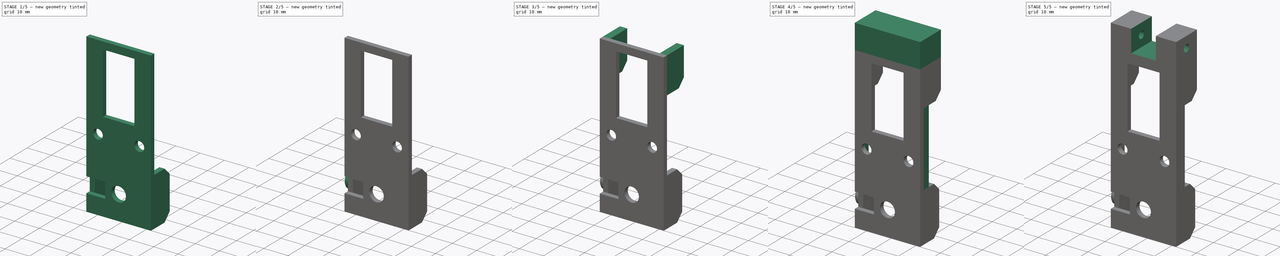
[diagram: build sequence overview — one tinted view per stage of 5, left to right]
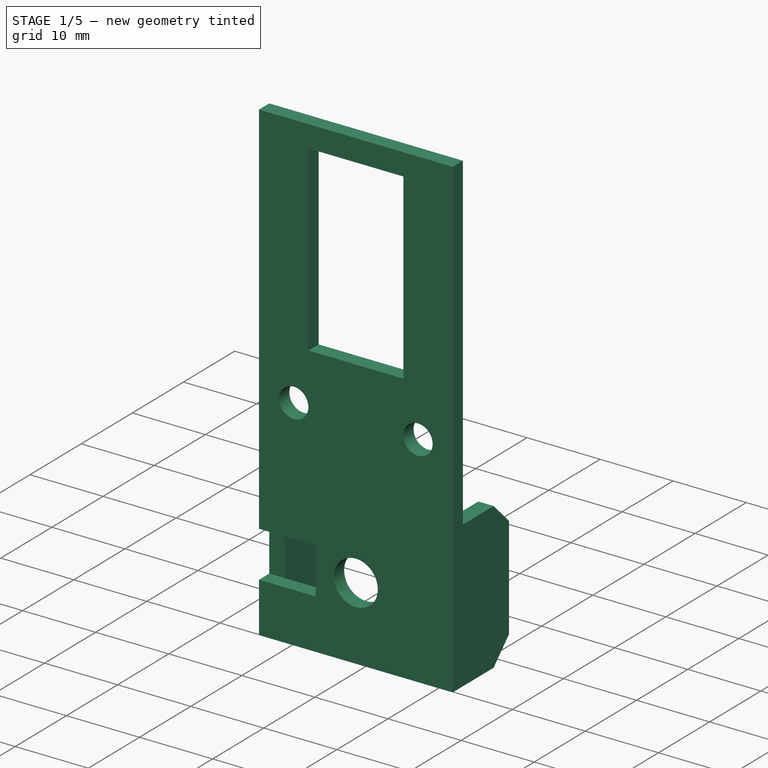
[diagram: stage 1 of 5 — iso view after this stage's code; geometry added in this stage tinted green]
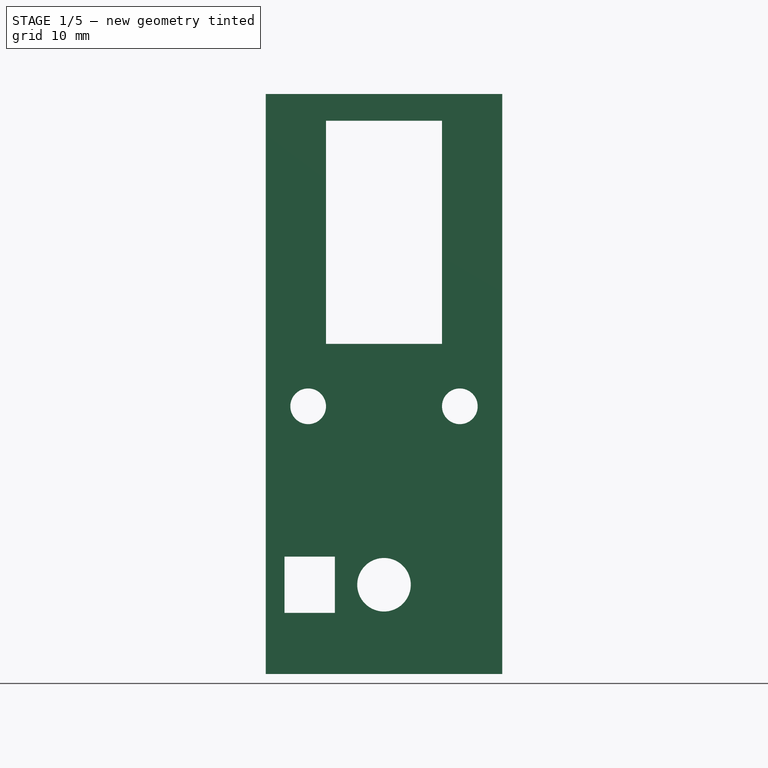
[diagram: stage 1 of 5 — front view after this stage's code; geometry added in this stage tinted green]
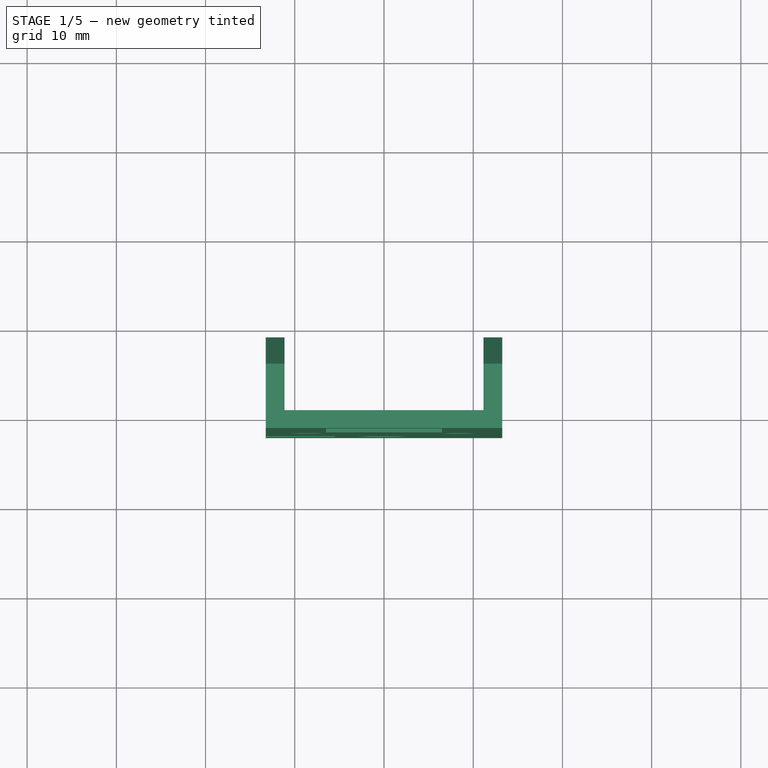
[diagram: stage 1 of 5 — top view after this stage's code; geometry added in this stage tinted green]
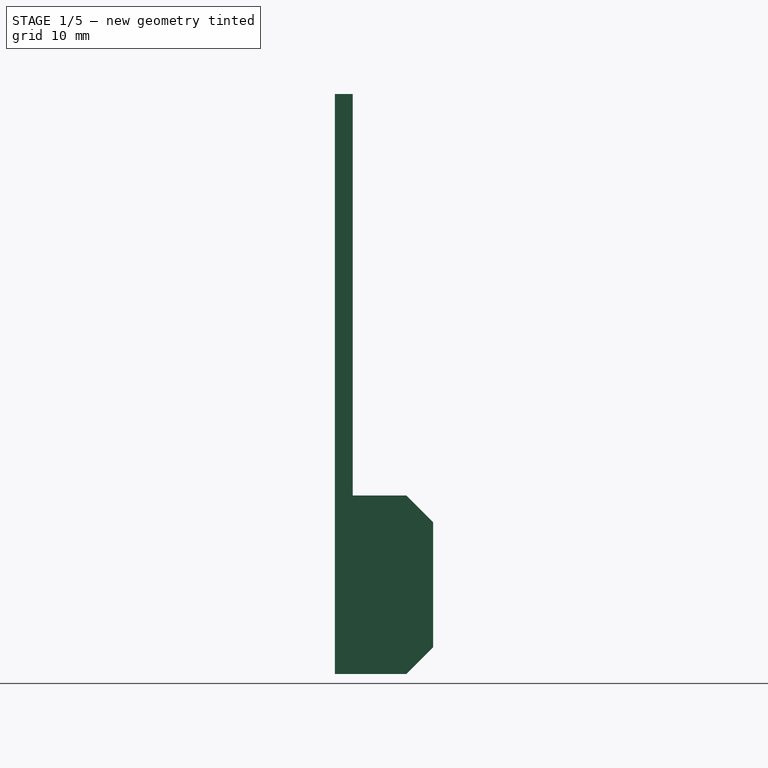
[diagram: stage 1 of 5 — right view after this stage's code; geometry added in this stage tinted green]
FCSTD DOCUMENT  (FreeCAD 0.18R16093 +53 (Git))
Label: motor_klem
License: All rights reserved
LicenseURL: http://en.wikipedia.org/wiki/All_rights_reserved
objects: Sketcher::SketchObject×11, PartDesign::Chamfer×8, PartDesign::Pad×6, PartDesign::Pocket×5, PartDesign::Body×1
note: 42 computed .brp shape members not serialized (recipe doc carries the construction recipe); baked Part::Feature solids carry a one-line shape summary decoded from their .brp

FEATURE [Sketcher::SketchObject] Sketch
  MapMode = 5
  Placement = pos=(0,0,0) rot=(1,0,0;1.5708rad)
  Support = -> [XZ_Plane]
  sketch-geometry (14):
    g0: LineSegment StartX=-13.25 StartY=55 StartZ=0 EndX=13.25 EndY=55 EndZ=0
    g1: LineSegment StartX=13.25 StartY=55 StartZ=0 EndX=13.25 EndY=-10 EndZ=0
    g2: LineSegment StartX=13.25 StartY=-10 StartZ=0 EndX=-13.25 EndY=-10 EndZ=0
    g3: LineSegment StartX=-13.25 StartY=55 StartZ=0 EndX=-13.25 EndY=3.15 EndZ=0
    g4: LineSegment StartX=-13.25 StartY=3.15 StartZ=0 EndX=-5.5 EndY=3.15 EndZ=0
    g5: LineSegment StartX=-5.5 StartY=-3.15 StartZ=0 EndX=-13.25 EndY=-3.15 EndZ=0
    g6: LineSegment StartX=-13.25 StartY=-3.15 StartZ=0 EndX=-13.25 EndY=-10 EndZ=0
    g7: LineSegment StartX=-5.5 StartY=-3.15 StartZ=0 EndX=-5.5 EndY=0 EndZ=0
    g8: LineSegment StartX=-5.5 StartY=0 StartZ=0 EndX=-5.5 EndY=3.15 EndZ=0
    g9: LineSegment [constr] StartX=-8.5 StartY=20 StartZ=0 EndX=8.5 EndY=20 EndZ=0
    g10: LineSegment [constr] StartX=0 StartY=0 StartZ=0 EndX=0 EndY=20 EndZ=0
    g11: Circle CenterX=-8.5 CenterY=20 CenterZ=0 NormalX=0 NormalY=0 NormalZ=1 AngleXU=0 Radius=2
    g12: Circle CenterX=8.5 CenterY=20 CenterZ=0 NormalX=0 NormalY=0 NormalZ=1 AngleXU=0 Radius=2
    g13: Circle CenterX=0 CenterY=0 CenterZ=0 NormalX=0 NormalY=0 NormalZ=1 AngleXU=0 Radius=3
  constraints (38):
    c: Coincident(g0,g1)
    c: Coincident(g1,g2)
    c: Horizontal(g0)
    c: Vertical(g1)
    c: Coincident(g3,g4)
    c: Coincident(g5,g6)
    c: Coincident(g2,g6)
    c: Vertical(g6)
    c: Horizontal(g5)
    c: Vertical(g3)
    c: Horizontal(g4)
    c: Symmetric(g2,g1,g-2)
    c: Vertical(g3,g5)
    c: Coincident(g0,g3)
    c: Distance(g2) = 26.5
    c: Distance(g1) = 65
    c: Coincident(g7,g8)
    c: Equal(g8,g7)
    c: Coincident(g7,g5)
    c: Vertical(g7)
    c: PointOnObject(g7,g-1)
    c: Coincident(g4,g8)
    c: Vertical(g8)
    c: Distance(g5,g3) = 6.3
    c: Distance(g-1,g7) = 5.5
    c: Symmetric(g9,g9,g-2)
    c: PointOnObject(g10,g9)
    c: Coincident(g10,g-1)
    c: Vertical(g10)
    c: Distance(g9) = 17
    c: Distance(g10) = 20
    c: Radius(g12) = 2
    c: Radius(g11) = 2
    c: Coincident(g11,g9)
    c: Coincident(g12,g9)
    c: DistanceY(g1,g-1) = 10
    c: Radius(g13) = 3
    c: Coincident(g13,g-1)
FEATURE [PartDesign::Pad] Pad
  Length = 2
  Length2 = 100
  Placement = pos=(0,0,0) rot=(1,0,0;1.5708rad)
  Profile = -> Sketch
  Type = 0
FEATURE [Sketcher::SketchObject] Sketch001
  ExternalGeometry = -> [Pad]
  MapMode = 5
  Placement = pos=(0,0,0) rot=(-1,0,0;1.5708rad)
  Support = -> [Pad]
  sketch-geometry (8):
    g0: LineSegment StartX=-13.25 StartY=10 StartZ=0 EndX=-11.15 EndY=10 EndZ=0
    g1: LineSegment StartX=-11.15 StartY=10 StartZ=0 EndX=-11.15 EndY=-10 EndZ=0
    g2: LineSegment StartX=-11.15 StartY=-10 StartZ=0 EndX=-13.25 EndY=-10 EndZ=0
    g3: LineSegment StartX=-13.25 StartY=-10 StartZ=0 EndX=-13.25 EndY=10 EndZ=0
    g4: LineSegment StartX=13.25 StartY=10 StartZ=0 EndX=11.15 EndY=10 EndZ=0
    g5: LineSegment StartX=11.15 StartY=10 StartZ=0 EndX=11.15 EndY=-10 EndZ=0
    g6: LineSegment StartX=11.15 StartY=-10 StartZ=0 EndX=13.25 EndY=-10 EndZ=0
    g7: LineSegment StartX=13.25 StartY=-10 StartZ=0 EndX=13.25 EndY=10 EndZ=0
  constraints (22):
    c: Coincident(g0,g1)
    c: Coincident(g1,g2)
    c: Coincident(g2,g3)
    c: Coincident(g3,g0)
    c: Horizontal(g0)
    c: Horizontal(g2)
    c: Vertical(g1)
    c: Coincident(g0,g-4)
    c: PointOnObject(g2,g-5)
    c: Distance(g3) = 20
    c: Coincident(g4,g5)
    c: Coincident(g5,g6)
    c: Coincident(g6,g7)
    c: Coincident(g7,g4)
    c: Horizontal(g4)
    c: Horizontal(g6)
    c: Vertical(g5)
    c: Vertical(g7)
    c: Coincident(g4,g-3)
    c: Equal(g7,g3)
    c: Distance(g4,g0) = 22.3
    c: Equal(g4,g0)
FEATURE [PartDesign::Pad] Pad001
  BaseFeature = -> Pad
  Length = 9
  Length2 = 100
  Placement = pos=(0,0,0) rot=(1,0,0;1.5708rad)
  Profile = -> Sketch001
  Type = 0
FEATURE [PartDesign::Chamfer] Chamfer
  Base = -> Pad001 [Edge62,Edge64,Edge50,Edge56]
  BaseFeature = -> Pad001
  Placement = pos=(0,0,0) rot=(1,0,0;1.5708rad)
  Size = 3
FEATURE [Sketcher::SketchObject] Sketch002
  MapMode = 5
  Placement = pos=(0,0,0) rot=(-1,0,0;1.5708rad)
  Support = -> [Chamfer]
  sketch-geometry (5):
    g0: LineSegment [constr] StartX=0 StartY=0 StartZ=0 EndX=0 EndY=-27 EndZ=0
    g1: LineSegment StartX=6.5 StartY=-52 StartZ=0 EndX=-6.5 EndY=-52 EndZ=0
    g2: LineSegment StartX=-6.5 StartY=-52 StartZ=0 EndX=-6.5 EndY=-27 EndZ=0
    g3: LineSegment StartX=-6.5 StartY=-27 StartZ=0 EndX=6.5 EndY=-27 EndZ=0
    g4: LineSegment StartX=6.5 StartY=-27 StartZ=0 EndX=6.5 EndY=-52 EndZ=0
  constraints (14):
    c: Coincident(g0,g-1)
    c: PointOnObject(g0,g-2)
    c: Distance(g0) = 27
    c: Coincident(g1,g2)
    c: Coincident(g2,g3)
    c: Coincident(g3,g4)
    c: Coincident(g4,g1)
    c: Horizontal(g1)
    c: Vertical(g2)
    c: Vertical(g4)
    c: PointOnObject(g0,g3)
    c: Symmetric(g2,g3,g-2)
    c: Distance(g3) = 13
    c: DistanceY(g1,g-1) = 52
FEATURE [PartDesign::Pocket] Pocket
  BaseFeature = -> Chamfer
  Length = 2.5
  Length2 = 100
  Placement = pos=(0,0,0) rot=(1,0,0;1.5708rad)
  Profile = -> Sketch002
  Type = 0
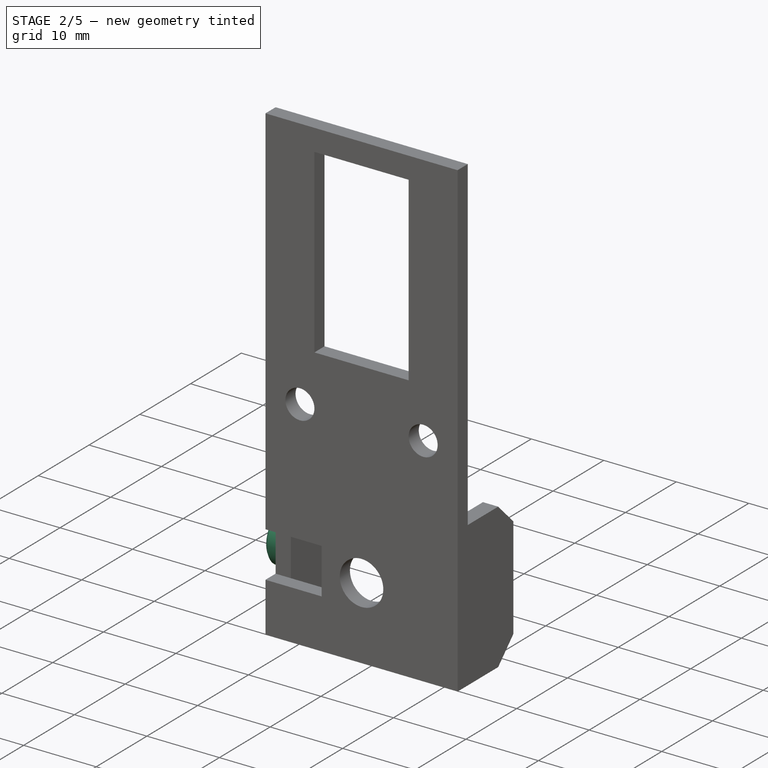
[diagram: stage 2 of 5 — iso view after this stage's code; geometry added in this stage tinted green]
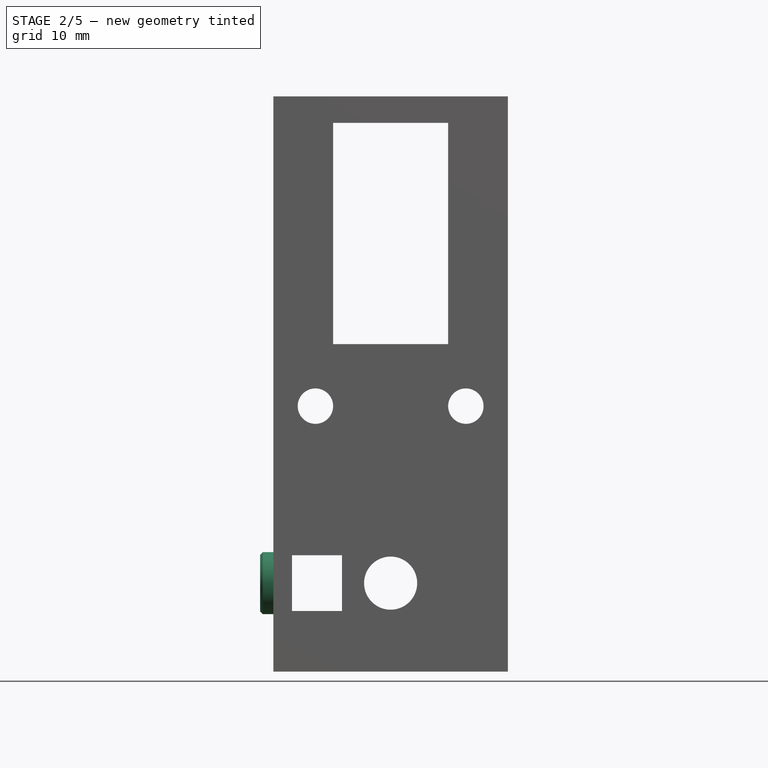
[diagram: stage 2 of 5 — front view after this stage's code; geometry added in this stage tinted green]
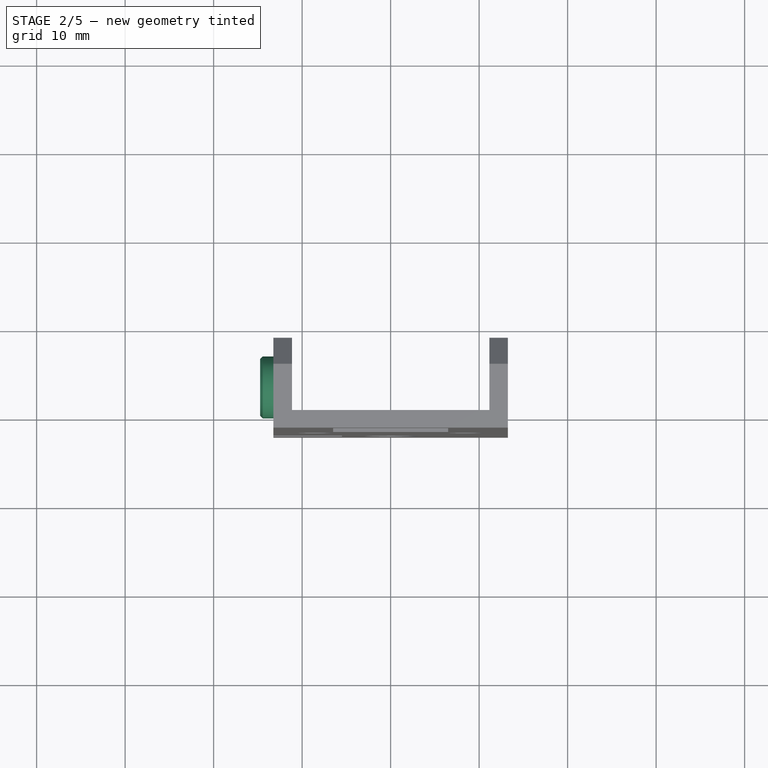
[diagram: stage 2 of 5 — top view after this stage's code; geometry added in this stage tinted green]
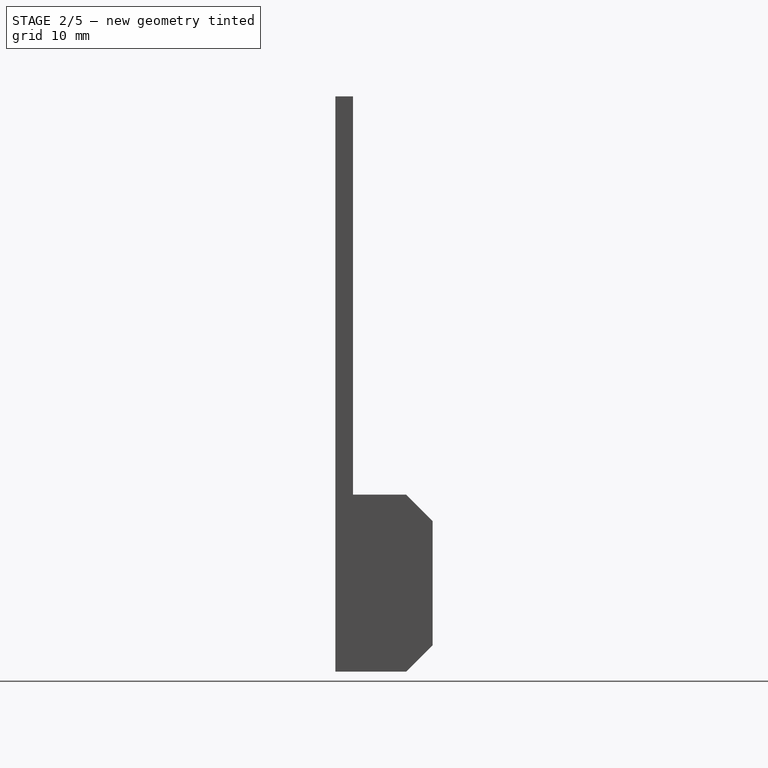
[diagram: stage 2 of 5 — right view after this stage's code; geometry added in this stage tinted green]
FEATURE [Sketcher::SketchObject] Sketch003
  MapMode = 5
  Placement = pos=(-13.25,0,1.2e-15) rot=(-0.707107,0,0.707107;3.14159rad)
  Support = -> [Pocket]
  sketch-geometry (1):
    g0: Circle CenterX=0 CenterY=-3.5 CenterZ=0 NormalX=0 NormalY=0 NormalZ=1 AngleXU=0 Radius=3.5
  constraints (3):
    c: PointOnObject(g-1,g0)
    c: Radius(g0) = 3.5
    c: PointOnObject(g0,g-2)
FEATURE [PartDesign::Pad] Pad002
  BaseFeature = -> Pocket
  Length = 1.5
  Length2 = 100
  Placement = pos=(0,0,0) rot=(1,0,0;1.5708rad)
  Profile = -> Sketch003
  Type = 0
FEATURE [Sketcher::SketchObject] Sketch004
  ExternalGeometry = -> [Pad002]
  MapMode = 5
  Placement = pos=(-14.75,0,0) rot=(0.707107,0,-0.707107;3.14159rad)
  Support = -> [Pad002]
  sketch-geometry (1):
    g0: Circle CenterX=-1.5e-15 CenterY=-3.5 CenterZ=0 NormalX=0 NormalY=0 NormalZ=1 AngleXU=0 Radius=1.7
  constraints (2):
    c: Radius(g0) = 1.7
    c: Coincident(g0,g-3)
FEATURE [PartDesign::Pocket] Pocket001
  BaseFeature = -> Pad002
  Length = 3
  Length2 = 100
  Placement = pos=(0,0,0) rot=(1,0,0;1.5708rad)
  Profile = -> Sketch004
  Type = 0
FEATURE [PartDesign::Chamfer] Chamfer001
  Base = -> Pocket001 [Edge95]
  BaseFeature = -> Pocket001
  Placement = pos=(0,0,0) rot=(1,0,0;1.5708rad)
  Size = 0.2
FEATURE [PartDesign::Chamfer] Chamfer002
  Base = -> Chamfer001 [Edge2]
  BaseFeature = -> Chamfer001
  Placement = pos=(0,0,0) rot=(1,0,0;1.5708rad)
  Size = 0.3
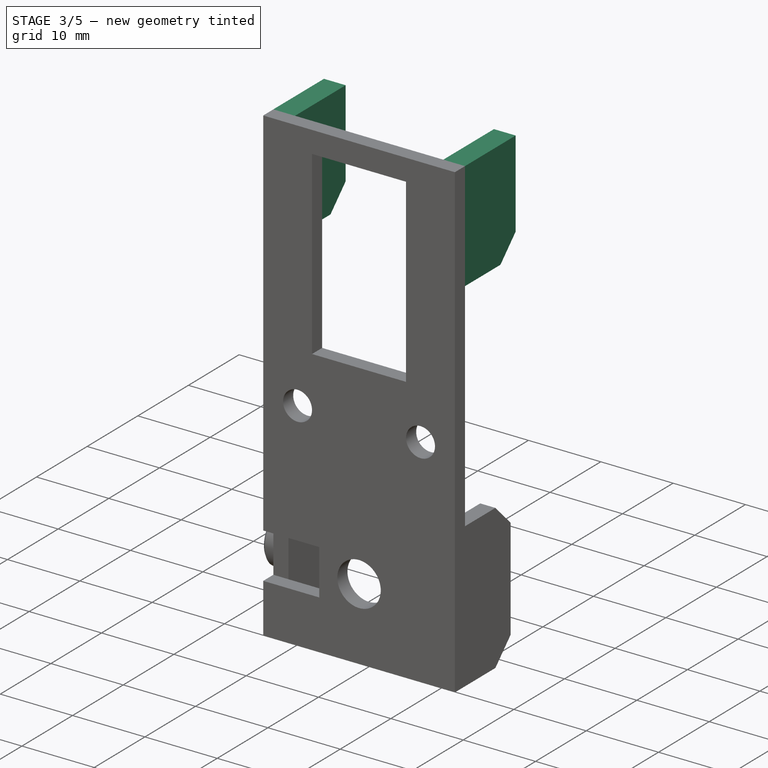
[diagram: stage 3 of 5 — iso view after this stage's code; geometry added in this stage tinted green]
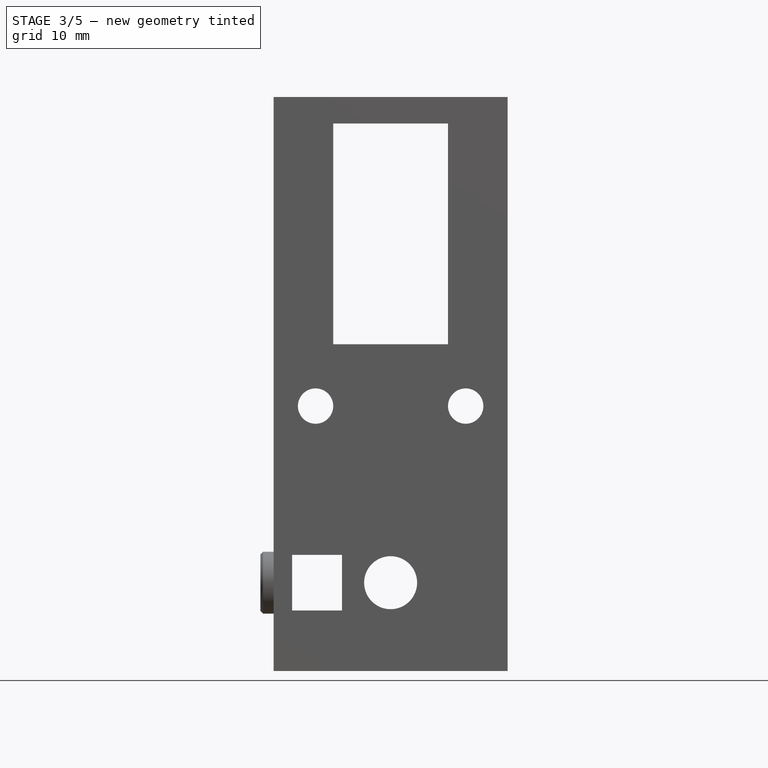
[diagram: stage 3 of 5 — front view after this stage's code; geometry added in this stage tinted green]
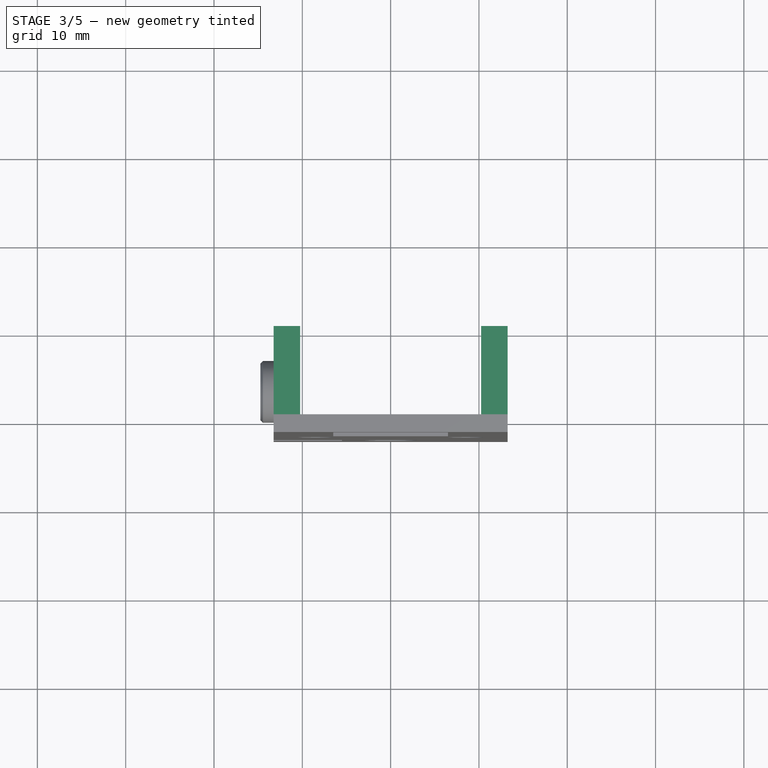
[diagram: stage 3 of 5 — top view after this stage's code; geometry added in this stage tinted green]
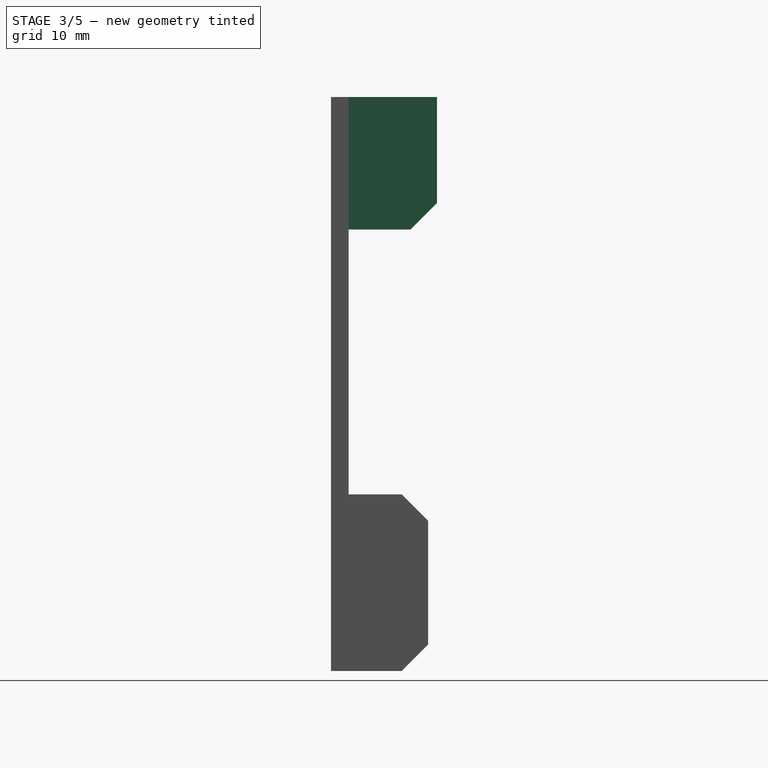
[diagram: stage 3 of 5 — right view after this stage's code; geometry added in this stage tinted green]
FEATURE [Sketcher::SketchObject] Sketch005
  ExternalGeometry = -> [Chamfer002]
  MapMode = 5
  Placement = pos=(0,0,0) rot=(-1,0,0;1.5708rad)
  Support = -> [Chamfer002]
  sketch-geometry (8):
    g0: LineSegment StartX=-13.25 StartY=-55 StartZ=0 EndX=-10.25 EndY=-55 EndZ=0
    g1: LineSegment StartX=-10.25 StartY=-55 StartZ=0 EndX=-10.25 EndY=-40 EndZ=0
    g2: LineSegment StartX=-10.25 StartY=-40 StartZ=0 EndX=-13.25 EndY=-40 EndZ=0
    g3: LineSegment StartX=-13.25 StartY=-40 StartZ=0 EndX=-13.25 EndY=-55 EndZ=0
    g4: LineSegment StartX=13.25 StartY=-55 StartZ=0 EndX=10.25 EndY=-55 EndZ=0
    g5: LineSegment StartX=10.25 StartY=-55 StartZ=0 EndX=10.25 EndY=-40 EndZ=0
    g6: LineSegment StartX=10.25 StartY=-40 StartZ=0 EndX=13.25 EndY=-40 EndZ=0
    g7: LineSegment StartX=13.25 StartY=-40 StartZ=0 EndX=13.25 EndY=-55 EndZ=0
  constraints (22):
    c: Coincident(g0,g1)
    c: Coincident(g1,g2)
    c: Coincident(g2,g3)
    c: Coincident(g3,g0)
    c: Horizontal(g0)
    c: Horizontal(g2)
    c: Vertical(g1)
    c: Vertical(g3)
    c: Coincident(g4,g5)
    c: Coincident(g5,g6)
    c: Coincident(g6,g7)
    c: Coincident(g7,g4)
    c: Horizontal(g4)
    c: Horizontal(g6)
    c: Vertical(g5)
    c: Vertical(g7)
    c: Distance(g3) = 15
    c: Distance(g2) = 3
    c: Coincident(g0,g-3)
    c: Distance(g6) = 3
    c: Distance(g7) = 15
    c: Coincident(g4,g-3)
FEATURE [PartDesign::Pad] Pad003
  BaseFeature = -> Chamfer002
  Length = 10
  Length2 = 100
  Placement = pos=(0,0,0) rot=(1,0,0;1.5708rad)
  Profile = -> Sketch005
  Type = 0
FEATURE [PartDesign::Chamfer] Chamfer003
  Base = -> Pad003 [Edge100]
  BaseFeature = -> Pad003
  Placement = pos=(0,0,0) rot=(1,0,0;1.5708rad)
  Size = 3
FEATURE [PartDesign::Chamfer] Chamfer004
  Base = -> Chamfer003 [Edge70]
  BaseFeature = -> Chamfer003
  Placement = pos=(0,0,0) rot=(1,0,0;1.5708rad)
  Size = 3
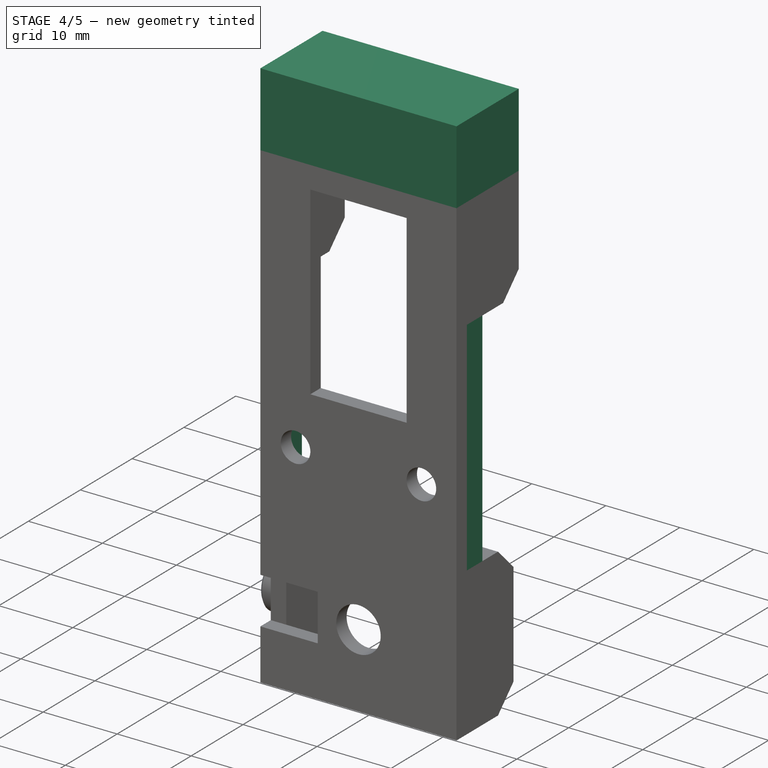
[diagram: stage 4 of 5 — iso view after this stage's code; geometry added in this stage tinted green]
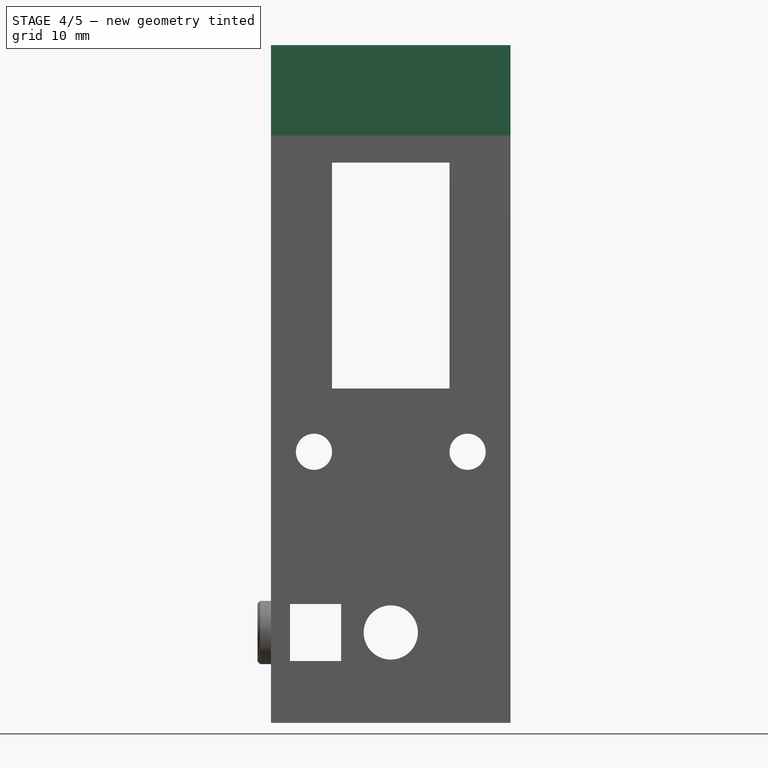
[diagram: stage 4 of 5 — front view after this stage's code; geometry added in this stage tinted green]
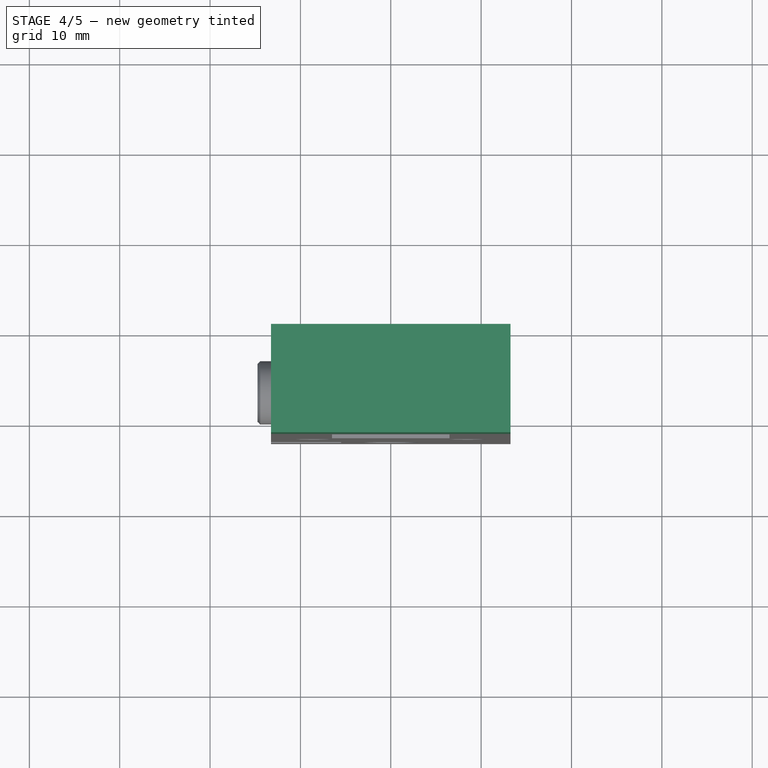
[diagram: stage 4 of 5 — top view after this stage's code; geometry added in this stage tinted green]
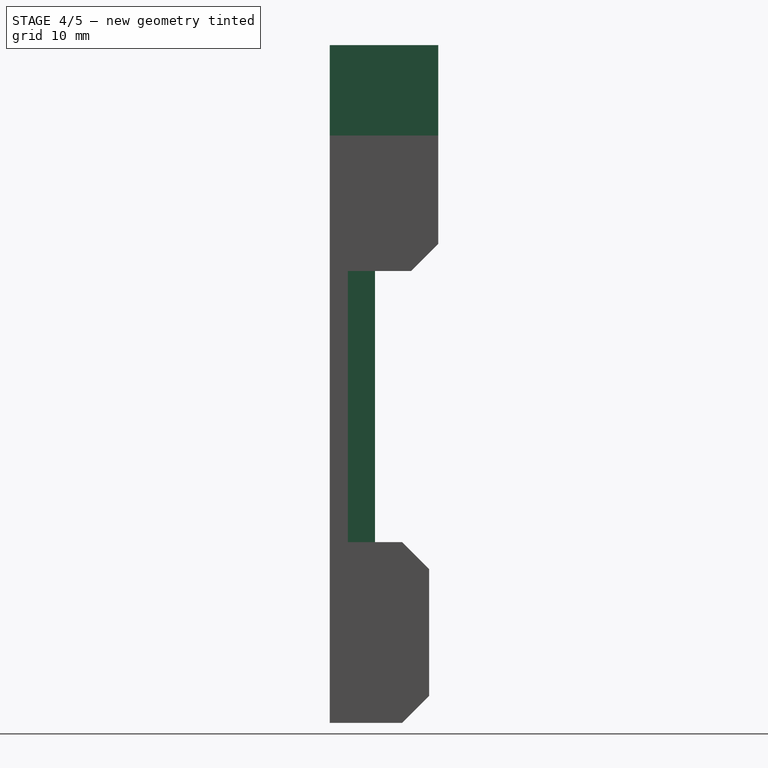
[diagram: stage 4 of 5 — right view after this stage's code; geometry added in this stage tinted green]
FEATURE [Sketcher::SketchObject] Sketch006
  ExternalGeometry = -> [Chamfer004]
  MapMode = 5
  Placement = pos=(0,0,0) rot=(-1,0,0;1.5708rad)
  Support = -> [Chamfer004]
  sketch-geometry (8):
    g0: LineSegment StartX=-13.25 StartY=-10 StartZ=0 EndX=-11.15 EndY=-10 EndZ=0
    g1: LineSegment StartX=-11.15 StartY=-10 StartZ=0 EndX=-11.15 EndY=-40 EndZ=0
    g2: LineSegment StartX=-11.15 StartY=-40 StartZ=0 EndX=-13.25 EndY=-40 EndZ=0
    g3: LineSegment StartX=-13.25 StartY=-40 StartZ=0 EndX=-13.25 EndY=-10 EndZ=0
    g4: LineSegment StartX=11.15 StartY=-10 StartZ=0 EndX=13.25 EndY=-10 EndZ=0
    g5: LineSegment StartX=13.25 StartY=-10 StartZ=0 EndX=13.25 EndY=-40 EndZ=0
    g6: LineSegment StartX=13.25 StartY=-40 StartZ=0 EndX=11.15 EndY=-40 EndZ=0
    g7: LineSegment StartX=11.15 StartY=-40 StartZ=0 EndX=11.15 EndY=-10 EndZ=0
  constraints (18):
    c: Coincident(g0,g1)
    c: Coincident(g1,g2)
    c: Coincident(g2,g3)
    c: Coincident(g3,g0)
    c: Horizontal(g2)
    c: Vertical(g1)
    c: Coincident(g4,g5)
    c: Coincident(g5,g6)
    c: Coincident(g6,g7)
    c: Coincident(g7,g4)
    c: Horizontal(g6)
    c: Vertical(g7)
    c: Coincident(g0,g-3)
    c: Coincident(g0,g-3)
    c: Coincident(g2,g-4)
    c: Coincident(g-6,g4)
    c: Coincident(g4,g-6)
    c: Coincident(g5,g-5)
FEATURE [PartDesign::Pad] Pad004
  BaseFeature = -> Chamfer004
  Length = 3
  Length2 = 100
  Placement = pos=(0,0,0) rot=(1,0,0;1.5708rad)
  Profile = -> Sketch006
  Type = 0
FEATURE [Sketcher::SketchObject] Sketch007
  ExternalGeometry = -> [Pad004]
  MapMode = 5
  Placement = pos=(0,-1.22e-14,55) rot=(0,0,1;3.14159rad)
  Support = -> [Pad004]
  sketch-geometry (4):
    g0: LineSegment StartX=-13.25 StartY=2 StartZ=0 EndX=13.25 EndY=2 EndZ=0
    g1: LineSegment StartX=13.25 StartY=2 StartZ=0 EndX=13.25 EndY=-10 EndZ=0
    g2: LineSegment StartX=13.25 StartY=-10 StartZ=0 EndX=-13.25 EndY=-10 EndZ=0
    g3: LineSegment StartX=-13.25 StartY=-10 StartZ=0 EndX=-13.25 EndY=2 EndZ=0
  constraints (10):
    c: Coincident(g0,g1)
    c: Coincident(g1,g2)
    c: Coincident(g2,g3)
    c: Coincident(g3,g0)
    c: Horizontal(g0)
    c: Horizontal(g2)
    c: Vertical(g1)
    c: Vertical(g3)
    c: Coincident(g0,g-5)
    c: Coincident(g1,g-4)
FEATURE [PartDesign::Pad] Pad005
  BaseFeature = -> Pad004
  Length = 10
  Length2 = 100
  Placement = pos=(0,0,0) rot=(1,0,0;1.5708rad)
  Profile = -> Sketch007
  Type = 0
FEATURE [PartDesign::Chamfer] Chamfer005
  Base = -> Pad005 [Edge5]
  BaseFeature = -> Pad005
  Placement = pos=(0,0,0) rot=(1,0,0;1.5708rad)
  Size = 2
FEATURE [PartDesign::Chamfer] Chamfer006
  Base = -> Chamfer005 [Edge39]
  BaseFeature = -> Chamfer005
  Placement = pos=(0,0,0) rot=(1,0,0;1.5708rad)
  Size = 2
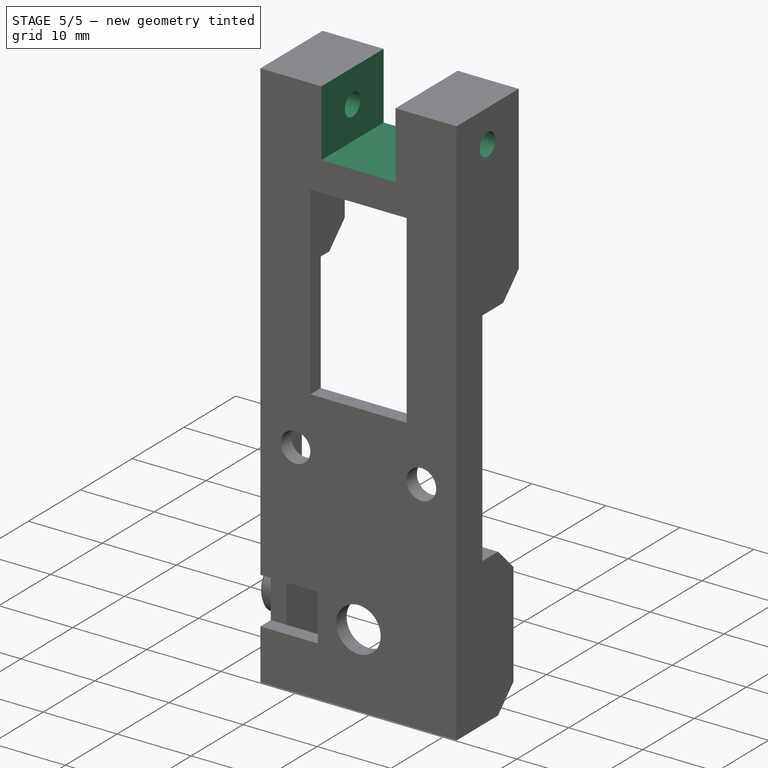
[diagram: stage 5 of 5 — iso view after this stage's code; geometry added in this stage tinted green]
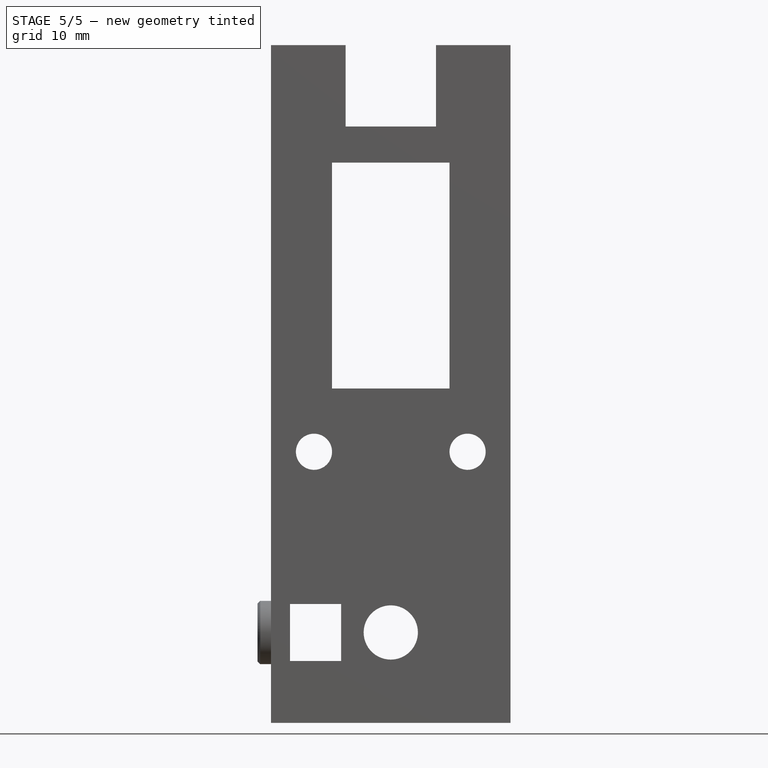
[diagram: stage 5 of 5 — front view after this stage's code; geometry added in this stage tinted green]
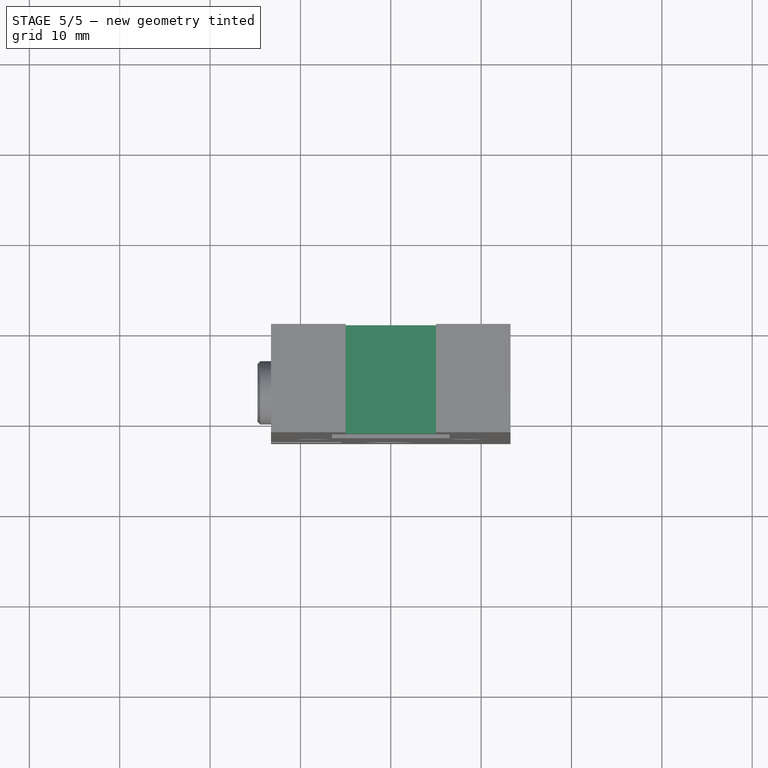
[diagram: stage 5 of 5 — top view after this stage's code; geometry added in this stage tinted green]
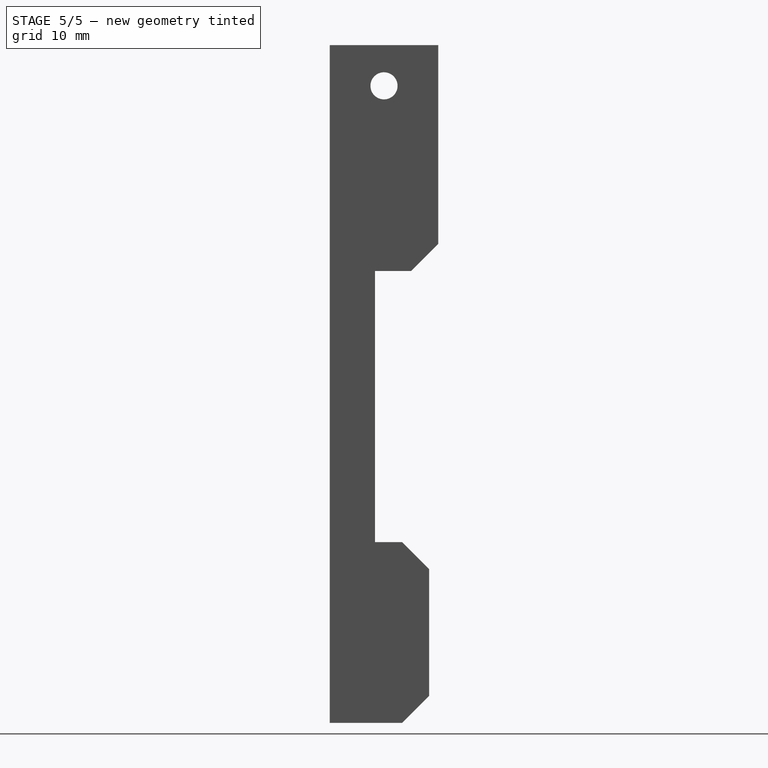
[diagram: stage 5 of 5 — right view after this stage's code; geometry added in this stage tinted green]
FEATURE [PartDesign::Chamfer] Chamfer007
  Base = -> Chamfer006 [Edge1]
  BaseFeature = -> Chamfer006
  Placement = pos=(0,0,0) rot=(1,0,0;1.5708rad)
  Size = 2
FEATURE [Sketcher::SketchObject] Sketch008
  ExternalGeometry = -> [Chamfer007]
  MapMode = 5
  Placement = pos=(0,0,65) rot=(0,0,1;3.14159rad)
  Support = -> [Chamfer007]
  sketch-geometry (4):
    g0: LineSegment StartX=-5 StartY=2 StartZ=0 EndX=5 EndY=2 EndZ=0
    g1: LineSegment StartX=5 StartY=2 StartZ=0 EndX=5 EndY=-10 EndZ=0
    g2: LineSegment StartX=5 StartY=-10 StartZ=0 EndX=-5 EndY=-10 EndZ=0
    g3: LineSegment StartX=-5 StartY=-10 StartZ=0 EndX=-5 EndY=2 EndZ=0
  constraints (11):
    c: Coincident(g0,g1)
    c: Coincident(g1,g2)
    c: Coincident(g2,g3)
    c: Coincident(g3,g0)
    c: Horizontal(g2)
    c: Vertical(g1)
    c: Vertical(g3)
    c: PointOnObject(g1,g-3)
    c: PointOnObject(g0,g-4)
    c: Symmetric(g0,g0,g-2)
    c: Distance(g2) = 10
FEATURE [PartDesign::Pocket] Pocket002
  BaseFeature = -> Chamfer007
  Length = 9
  Length2 = 100
  Placement = pos=(0,0,0) rot=(1,0,0;1.5708rad)
  Profile = -> Sketch008
  Type = 0
FEATURE [Sketcher::SketchObject] Sketch009
  ExternalGeometry = -> [Pocket002]
  MapMode = 5
  Placement = pos=(-13.25,0,0) rot=(0.707107,0,-0.707107;3.14159rad)
  Support = -> [Pocket002]
  sketch-geometry (2):
    g0: Circle CenterX=-60.5 CenterY=-4 CenterZ=0 NormalX=0 NormalY=0 NormalZ=1 AngleXU=0 Radius=1.5
    g1: LineSegment [constr] StartX=-65 StartY=-4 StartZ=0 EndX=-60.5 EndY=-4 EndZ=0
  constraints (5):
    c: Radius(g0) = 1.5
    c: Symmetric(g-5,g-5,g1)
    c: Coincident(g1,g0)
    c: Horizontal(g1)
    c: Distance(g1) = 4.5
FEATURE [PartDesign::Pocket] Pocket003
  BaseFeature = -> Pocket002
  Length = 5
  Length2 = 100
  Placement = pos=(0,0,0) rot=(1,0,0;1.5708rad)
  Profile = -> Sketch009
  Type = 1
FEATURE [Sketcher::SketchObject] Sketch010
  ExternalGeometry = -> [Pocket003]
  MapMode = 5
  Placement = pos=(-13.25,0,0) rot=(0.707107,0,-0.707107;3.14159rad)
  Support = -> [Pocket003]
  sketch-geometry (1):
    g0: Circle CenterX=-60.5 CenterY=-4 CenterZ=0 NormalX=0 NormalY=0 NormalZ=1 AngleXU=0 Radius=2.75
  constraints (2):
    c: Radius(g0) = 2.75
    c: Coincident(g0,g-3)
FEATURE [PartDesign::Pocket] Pocket004
  BaseFeature = -> Pocket003
  Length = 1.7
  Length2 = 100
  Placement = pos=(0,0,0) rot=(1,0,0;1.5708rad)
  Profile = -> Sketch010
  Type = 0
FEATURE [PartDesign::Body] Body
  Group = -> [Sketch,Pad,Sketch001,Pad001,Chamfer,Sketch002,Pocket,Sketch003,Pad002,Sketch004,Pocket001,Chamfer001,Chamfer002,Sketch005,Pad003,Chamfer003,Chamfer004,Sketch006,Pad004,Sketch007,Pad005,Chamfer005,Chamfer006,Chamfer007,Sketch008,Pocket002,Sketch009,Pocket003,Sketch010,Pocket004]
  Origin = -> Origin
  Tip = -> Pocket004
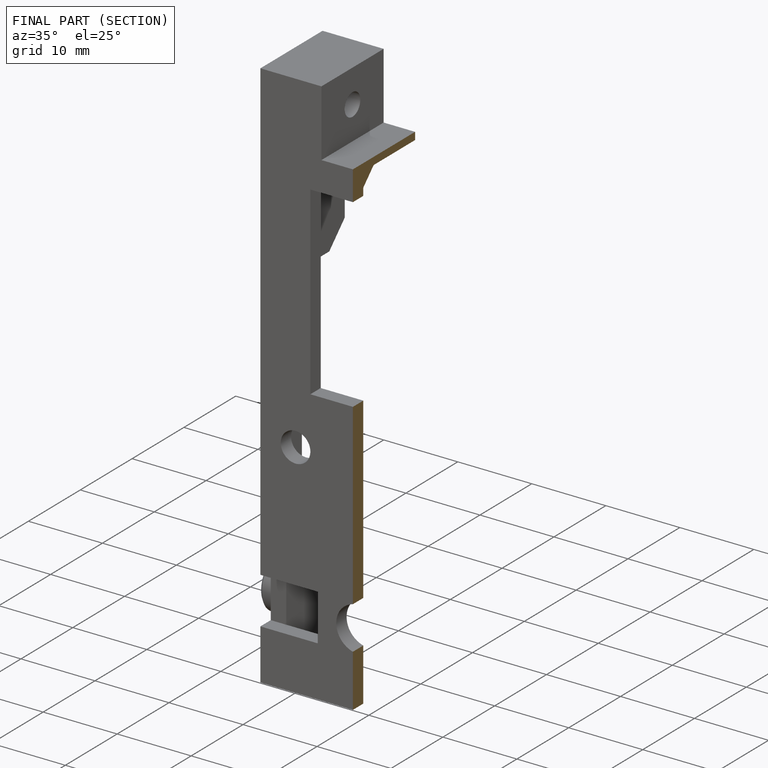
[diagram: finished part — half-section view (interior)]
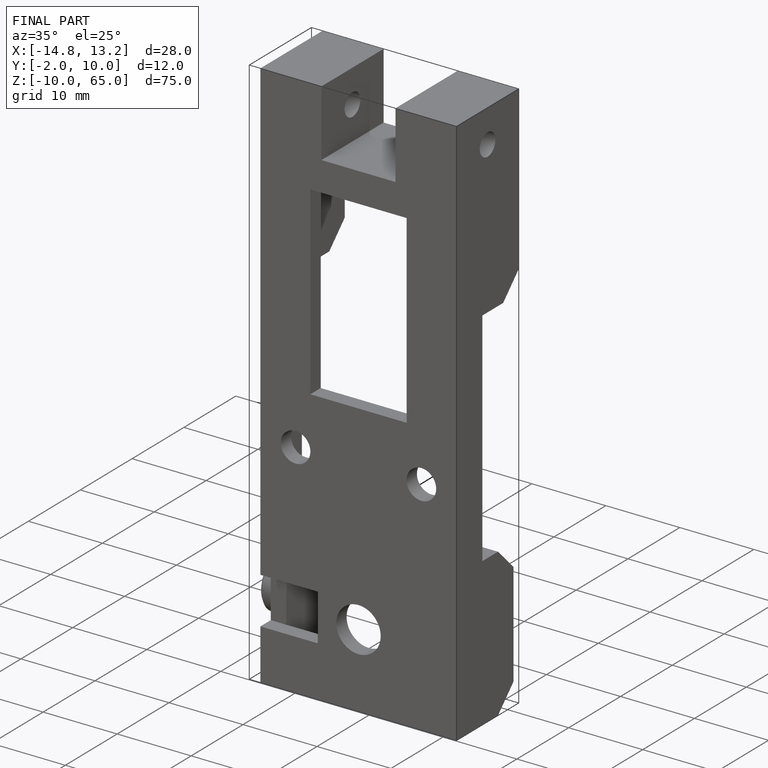
[diagram: finished part — iso view with bounding-box wireframe]
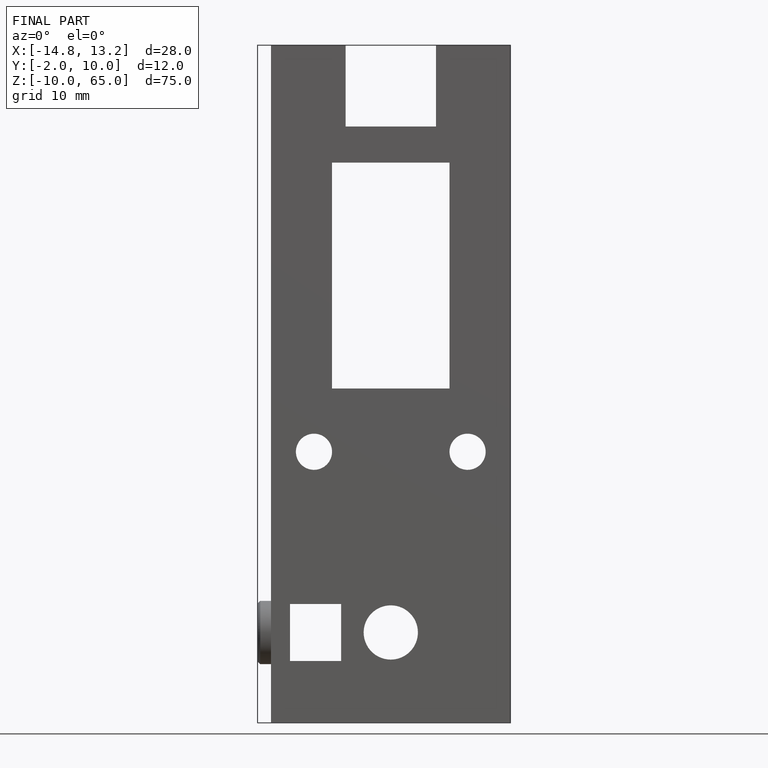
[diagram: finished part — front view with bounding-box wireframe]
